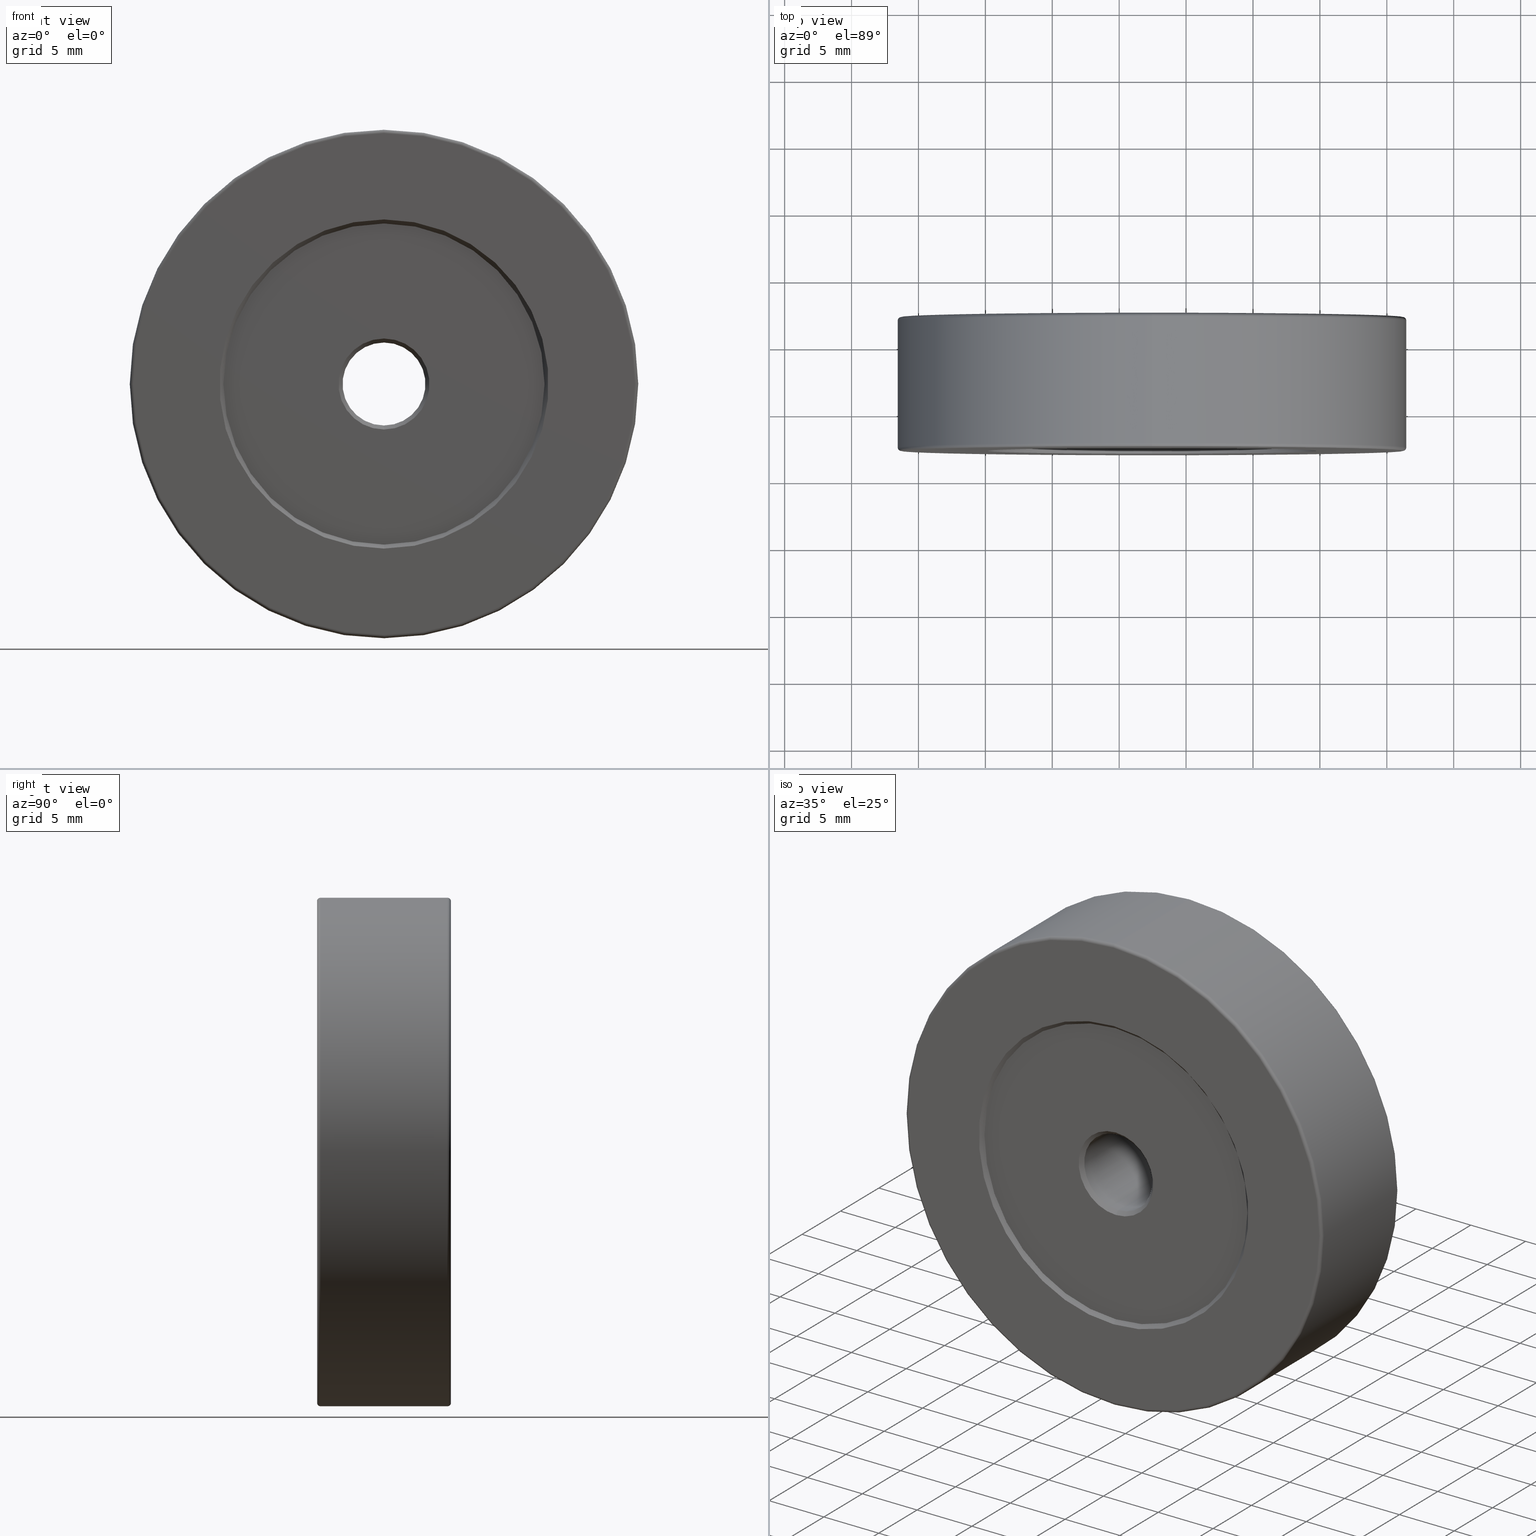
[diagram: canonical four-view strip — front | top / right | iso, engineering-drawing reading convention]
A machine part, canonical four-view strip (front | top / right | iso — engineering-drawing reading convention). The complete STEP part file that produces these views, byte-faithful:
ISO-10303-21;
HEADER;
FILE_DESCRIPTION (( 'STEP AP203' ),
    '1' );
FILE_NAME ('1.4.2.123_ZGH-38-DK10.STEP',
    '2024-04-06T05:22:21',
    ( '' ),
    ( '' ),
    'SwSTEP 2.0',
    'SolidWorks 2021',
    '' );
FILE_SCHEMA (( 'CONFIG_CONTROL_DESIGN' ));
ENDSEC;

DATA;
#1 = CALENDAR_DATE ( 2024, 6, 4 ) ;
#2 = ADVANCED_FACE ( 'NONE', ( #467 ), #8, .F. ) ;
#3 = CC_DESIGN_DATE_AND_TIME_ASSIGNMENT ( #567, #296, ( #200 ) ) ;
#4 = ORIENTED_EDGE ( 'NONE', *, *, #577, .T. ) ;
#5 = EDGE_CURVE ( 'NONE', #523, #37, #374, .T. ) ;
#6 = APPROVAL_STATUS ( 'not_yet_approved' ) ;
#7 = AXIS2_PLACEMENT_3D ( 'NONE', #418, #608, #546 ) ;
#8 = CONICAL_SURFACE ( 'NONE', #304, 3.099999999999998757, 0.7853981633974460586 ) ;
#9 = CARTESIAN_POINT ( 'NONE',  ( -7.546808913101048510, 1.856404872697271946, 56.99999999999999289 ) ) ;
#10 = ORIENTED_EDGE ( 'NONE', *, *, #140, .T. ) ;
#11 = CARTESIAN_POINT ( 'NONE',  ( -7.546808913101048510, -7.293595127302721082, 41.09999999999999432 ) ) ;
#12 = ORIENTED_EDGE ( 'NONE', *, *, #609, .T. ) ;
#13 = CARTESIAN_POINT ( 'NONE',  ( -7.546808913101048510, 1.506404872697263642, 38.00000000000000000 ) ) ;
#14 = ORIENTED_EDGE ( 'NONE', *, *, #106, .F. ) ;
#15 = DIRECTION ( 'NONE',  ( 0.000000000000000000, 0.000000000000000000, -1.000000000000000000 ) ) ;
#16 = CARTESIAN_POINT ( 'NONE',  ( -7.546808913101048510, -7.893595127302726944, 41.09999999999999432 ) ) ;
#17 = AXIS2_PLACEMENT_3D ( 'NONE', #524, #53, #351 ) ;
#18 = ORIENTED_EDGE ( 'NONE', *, *, #512, .T. ) ;
#19 = EDGE_CURVE ( 'NONE', #523, #270, #98, .T. ) ;
#20 = DIRECTION ( 'NONE',  ( 0.000000000000000000, 0.000000000000000000, 1.000000000000000000 ) ) ;
#21 = CARTESIAN_POINT ( 'NONE',  ( -7.546808913101048510, 1.806404872697273900, 38.00000000000000000 ) ) ;
#22 = EDGE_LOOP ( 'NONE', ( #563, #282, #573, #490 ) ) ;
#23 = DIRECTION ( 'NONE',  ( 8.659560562354914369E-17, 0.7071067811865490160, -0.7071067811865460184 ) ) ;
#24 = DIRECTION ( 'NONE',  ( 0.000000000000000000, 0.000000000000000000, 1.000000000000000000 ) ) ;
#25 = VERTEX_POINT ( 'NONE', #186 ) ;
#26 = CARTESIAN_POINT ( 'NONE',  ( -7.546808913101048510, -7.643595127302727832, 56.74999999999999289 ) ) ;
#27 = DIRECTION ( 'NONE',  ( 0.000000000000000000, 0.000000000000000000, -1.000000000000000000 ) ) ;
#28 = AXIS2_PLACEMENT_3D ( 'NONE', #459, #233, #221 ) ;
#29 = EDGE_CURVE ( 'NONE', #188, #97, #535, .T. ) ;
#30 = AXIS2_PLACEMENT_3D ( 'NONE', #576, #530, #442 ) ;
#31 = ORIENTED_EDGE ( 'NONE', *, *, #140, .F. ) ;
#32 = CARTESIAN_POINT ( 'NONE',  ( -7.546808913101048510, 2.106404872697272168, 38.00000000000000000 ) ) ;
#33 = DIRECTION ( 'NONE',  ( 0.000000000000000000, 0.000000000000000000, 1.000000000000000000 ) ) ;
#34 = EDGE_LOOP ( 'NONE', ( #306, #228, #359, #363 ) ) ;
#35 = CYLINDRICAL_SURFACE ( 'NONE', #28, 19.00000000000000000 ) ;
#36 = CARTESIAN_POINT ( 'NONE',  ( -7.546808913101048510, 2.106404872697272168, 38.00000000000000000 ) ) ;
#37 = VERTEX_POINT ( 'NONE', #417 ) ;
#38 = FACE_OUTER_BOUND ( 'NONE', #312, .T. ) ;
#39 = VERTEX_POINT ( 'NONE', #272 ) ;
#40 = AXIS2_PLACEMENT_3D ( 'NONE', #279, #380, #27 ) ;
#41 = DIRECTION ( 'NONE',  ( 0.000000000000000000, 0.000000000000000000, -1.000000000000000000 ) ) ;
#42 = EDGE_CURVE ( 'NONE', #585, #299, #458, .T. ) ;
#43 = APPROVAL ( #54, 'δָ��' ) ;
#44 = EDGE_LOOP ( 'NONE', ( #14, #132, #487, #143 ) ) ;
#45 = APPROVAL_STATUS ( 'not_yet_approved' ) ;
#46 = EDGE_CURVE ( 'NONE', #266, #286, #235, .T. ) ;
#47 =( GEOMETRIC_REPRESENTATION_CONTEXT ( 3 ) GLOBAL_UNCERTAINTY_ASSIGNED_CONTEXT ( ( #445 ) ) GLOBAL_UNIT_ASSIGNED_CONTEXT ( ( #559, #421, #138 ) ) REPRESENTATION_CONTEXT ( 'NONE', 'WORKASPACE' ) );
#48 = PERSON_AND_ORGANIZATION_ROLE ( 'design_owner' ) ;
#49 = LOCAL_TIME ( 13, 22, 21.00000000000000000, #196 ) ;
#50 = ORIENTED_EDGE ( 'NONE', *, *, #477, .T. ) ;
#51 = VECTOR ( 'NONE', #298, 1000.000000000000000 ) ;
#52 = AXIS2_PLACEMENT_3D ( 'NONE', #210, #369, #108 ) ;
#53 = DIRECTION ( 'NONE',  ( -0.000000000000000000, 1.000000000000000000, -0.000000000000000000 ) ) ;
#54 = APPROVAL_STATUS ( 'not_yet_approved' ) ;
#55 = DIRECTION ( 'NONE',  ( -0.000000000000000000, -1.000000000000000000, -0.000000000000000000 ) ) ;
#56 = EDGE_CURVE ( 'NONE', #270, #97, #583, .T. ) ;
#57 = CONICAL_SURFACE ( 'NONE', #190, 3.099999999999998757, 0.7853981633974460586 ) ;
#58 = LINE ( 'NONE', #444, #403 ) ;
#59 = SECURITY_CLASSIFICATION ( '', '', #248 ) ;
#60 = AXIS2_PLACEMENT_3D ( 'NONE', #552, #462, #182 ) ;
#61 = CARTESIAN_POINT ( 'NONE',  ( -7.546808913101048510, -7.643595127302727832, 38.00000000000000000 ) ) ;
#62 = ADVANCED_FACE ( 'NONE', ( #240 ), #486, .F. ) ;
#63 = VERTEX_POINT ( 'NONE', #571 ) ;
#64 = CARTESIAN_POINT ( 'NONE',  ( -7.546808913101048510, 1.806404872697272346, 38.00000000000000000 ) ) ;
#65 = DIRECTION ( 'NONE',  ( 0.000000000000000000, 1.000000000000000000, 0.000000000000000000 ) ) ;
#66 = ORIENTED_EDGE ( 'NONE', *, *, #68, .F. ) ;
#67 = CARTESIAN_POINT ( 'NONE',  ( -7.546808913101048510, 1.806404872697272346, 50.00000000000000000 ) ) ;
#68 = EDGE_CURVE ( 'NONE', #526, #204, #223, .T. ) ;
#69 = FACE_OUTER_BOUND ( 'NONE', #44, .T. ) ;
#70 = ORIENTED_EDGE ( 'NONE', *, *, #316, .F. ) ;
#71 = DIRECTION ( 'NONE',  ( 0.000000000000000000, 0.000000000000000000, 1.000000000000000000 ) ) ;
#72 = AXIS2_PLACEMENT_3D ( 'NONE', #307, #561, #606 ) ;
#73 = ADVANCED_FACE ( 'NONE', ( #207, #74 ), #485, .T. ) ;
#74 = FACE_OUTER_BOUND ( 'NONE', #367, .T. ) ;
#75 = ORIENTED_EDGE ( 'NONE', *, *, #422, .T. ) ;
#76 = CARTESIAN_POINT ( 'NONE',  ( -7.546808913101048510, -7.893595127302726944, 38.00000000000000000 ) ) ;
#77 = CARTESIAN_POINT ( 'NONE',  ( -7.546808913101048510, 1.806404872697273900, 50.00000000000000000 ) ) ;
#78 = ORIENTED_EDGE ( 'NONE', *, *, #153, .T. ) ;
#79 = DIRECTION ( 'NONE',  ( 0.000000000000000000, 0.000000000000000000, 1.000000000000000000 ) ) ;
#80 = ADVANCED_FACE ( 'NONE', ( #157 ), #348, .T. ) ;
#81 = CARTESIAN_POINT ( 'NONE',  ( -7.546808913101045846, 2.106404872697272168, 19.25000000000000000 ) ) ;
#82 = ORIENTED_EDGE ( 'NONE', *, *, #19, .F. ) ;
#83 = DIRECTION ( 'NONE',  ( -0.000000000000000000, -1.000000000000000000, -0.000000000000000000 ) ) ;
#84 = DIRECTION ( 'NONE',  ( 0.000000000000000000, 0.7071067811865474617, 0.7071067811865474617 ) ) ;
#85 = CIRCLE ( 'NONE', #72, 12.00000000000000355 ) ;
#86 = CC_DESIGN_SECURITY_CLASSIFICATION ( #59, ( #392 ) ) ;
#87 = AXIS2_PLACEMENT_3D ( 'NONE', #329, #171, #551 ) ;
#88 = AXIS2_PLACEMENT_3D ( 'NONE', #542, #404, #20 ) ;
#89 = CARTESIAN_POINT ( 'NONE',  ( -7.546808913101048510, 2.106404872697272168, 19.00000000000000000 ) ) ;
#90 = DIRECTION ( 'NONE',  ( -1.000000000000000000, 0.000000000000000000, 0.000000000000000000 ) ) ;
#91 = DIRECTION ( 'NONE',  ( -0.000000000000000000, -1.000000000000000000, -0.000000000000000000 ) ) ;
#92 = ORIENTED_EDGE ( 'NONE', *, *, #412, .T. ) ;
#93 = EDGE_LOOP ( 'NONE', ( #220, #18 ) ) ;
#94 = EDGE_CURVE ( 'NONE', #39, #569, #146, .T. ) ;
#95 = CARTESIAN_POINT ( 'NONE',  ( 0.000000000000000000, 0.000000000000000000, 0.000000000000000000 ) ) ;
#96 = CC_DESIGN_PERSON_AND_ORGANIZATION_ASSIGNMENT ( #344, #433, ( #392 ) ) ;
#97 = VERTEX_POINT ( 'NONE', #167 ) ;
#98 = CIRCLE ( 'NONE', #495, 0.2500000000000002220 ) ;
#99 = PERSON_AND_ORGANIZATION ( #521, #603 ) ;
#100 = APPROVAL_DATE_TIME ( #478, #43 ) ;
#101 = APPROVAL_ROLE ( '' ) ;
#102 = ORIENTED_EDGE ( 'NONE', *, *, #94, .T. ) ;
#103 = CIRCLE ( 'NONE', #199, 3.099999999999998757 ) ;
#104 = PERSON_AND_ORGANIZATION ( #521, #603 ) ;
#105 = VECTOR ( 'NONE', #249, 1000.000000000000000 ) ;
#106 = EDGE_CURVE ( 'NONE', #155, #63, #428, .T. ) ;
#107 = ORIENTED_EDGE ( 'NONE', *, *, #465, .F. ) ;
#108 = DIRECTION ( 'NONE',  ( 0.000000000000000000, 0.000000000000000000, 1.000000000000000000 ) ) ;
#109 = CC_DESIGN_DATE_AND_TIME_ASSIGNMENT ( #435, #516, ( #59 ) ) ;
#110 = EDGE_LOOP ( 'NONE', ( #290, #12 ) ) ;
#111 = CIRCLE ( 'NONE', #474, 3.400000000000007017 ) ;
#112 = APPROVAL_PERSON_ORGANIZATION ( #99, #43, #101 ) ;
#113 = FACE_OUTER_BOUND ( 'NONE', #406, .T. ) ;
#114 = TOROIDAL_SURFACE ( 'NONE', #386, 18.75000000000000000, 0.2500000000000000000 ) ;
#115 = ORIENTED_EDGE ( 'NONE', *, *, #337, .T. ) ;
#116 = CARTESIAN_POINT ( 'NONE',  ( -7.546808913101048510, -7.593595127302728010, 38.00000000000000000 ) ) ;
#117 = EDGE_CURVE ( 'NONE', #507, #308, #582, .T. ) ;
#118 = ORIENTED_EDGE ( 'NONE', *, *, #436, .T. ) ;
#119 = EDGE_CURVE ( 'NONE', #204, #286, #203, .T. ) ;
#120 = DIRECTION ( 'NONE',  ( 0.000000000000000000, 0.000000000000000000, 1.000000000000000000 ) ) ;
#121 = CARTESIAN_POINT ( 'NONE',  ( -7.546808913101046734, -7.593595127302728010, 50.00000000000000000 ) ) ;
#122 = ORIENTED_EDGE ( 'NONE', *, *, #245, .T. ) ;
#123 = CARTESIAN_POINT ( 'NONE',  ( -7.546808913101048510, -7.593595127302728010, 41.40000000000000568 ) ) ;
#124 = DIRECTION ( 'NONE',  ( -0.000000000000000000, 1.000000000000000000, -0.000000000000000000 ) ) ;
#125 = AXIS2_PLACEMENT_3D ( 'NONE', #269, #91, #411 ) ;
#126 = ORIENTED_EDGE ( 'NONE', *, *, #267, .F. ) ;
#127 = CARTESIAN_POINT ( 'NONE',  ( -7.546808913101048510, -7.293595127302721082, 34.89999999999999858 ) ) ;
#128 = DIRECTION ( 'NONE',  ( 0.000000000000000000, 0.000000000000000000, 1.000000000000000000 ) ) ;
#129 = ORIENTED_EDGE ( 'NONE', *, *, #389, .F. ) ;
#130 = FACE_OUTER_BOUND ( 'NONE', #137, .T. ) ;
#131 = DIRECTION ( 'NONE',  ( -0.000000000000000000, -1.000000000000000000, -0.000000000000000000 ) ) ;
#132 = ORIENTED_EDGE ( 'NONE', *, *, #316, .T. ) ;
#133 = CARTESIAN_POINT ( 'NONE',  ( -7.546808913101048510, 2.106404872697272168, 50.29999999999999716 ) ) ;
#134 = FACE_OUTER_BOUND ( 'NONE', #215, .T. ) ;
#135 = CIRCLE ( 'NONE', #313, 18.99999999999999645 ) ;
#136 = AXIS2_PLACEMENT_3D ( 'NONE', #399, #447, #212 ) ;
#137 = EDGE_LOOP ( 'NONE', ( #538, #482 ) ) ;
#138 =( NAMED_UNIT ( * ) SI_UNIT ( $, .STERADIAN. ) SOLID_ANGLE_UNIT ( ) );
#139 = APPLICATION_CONTEXT ( 'configuration controlled 3d designs of mechanical parts and assemblies' ) ;
#140 = EDGE_CURVE ( 'NONE', #188, #523, #401, .T. ) ;
#141 = ORIENTED_EDGE ( 'NONE', *, *, #477, .F. ) ;
#142 = DIRECTION ( 'NONE',  ( 0.000000000000000000, 0.000000000000000000, 1.000000000000000000 ) ) ;
#143 = ORIENTED_EDGE ( 'NONE', *, *, #544, .F. ) ;
#144 = COORDINATED_UNIVERSAL_TIME_OFFSET ( 8, 0, .AHEAD. ) ;
#145 = CIRCLE ( 'NONE', #209, 0.2500000000000002220 ) ;
#146 = CIRCLE ( 'NONE', #136, 12.29999999999999893 ) ;
#147 = EDGE_LOOP ( 'NONE', ( #129, #168, #278, #320 ) ) ;
#148 = CARTESIAN_POINT ( 'NONE',  ( -7.546808913101048510, -7.893595127302726944, 38.00000000000000000 ) ) ;
#149 = APPROVAL_ROLE ( '' ) ;
#150 = CIRCLE ( 'NONE', #234, 18.74999999999999645 ) ;
#151 = ORIENTED_EDGE ( 'NONE', *, *, #422, .F. ) ;
#152 = VECTOR ( 'NONE', #238, 1000.000000000000000 ) ;
#153 = EDGE_CURVE ( 'NONE', #402, #585, #480, .T. ) ;
#154 = DIRECTION ( 'NONE',  ( 0.000000000000000000, 1.000000000000000000, 0.000000000000000000 ) ) ;
#155 = VERTEX_POINT ( 'NONE', #408 ) ;
#156 = DIRECTION ( 'NONE',  ( 0.000000000000000000, 0.000000000000000000, 1.000000000000000000 ) ) ;
#157 = FACE_OUTER_BOUND ( 'NONE', #388, .T. ) ;
#158 = ORIENTED_EDGE ( 'NONE', *, *, #337, .F. ) ;
#159 = CIRCLE ( 'NONE', #457, 12.29999999999999183 ) ;
#160 = FACE_OUTER_BOUND ( 'NONE', #34, .T. ) ;
#161 = VECTOR ( 'NONE', #597, 1000.000000000000114 ) ;
#162 = CIRCLE ( 'NONE', #356, 12.00000000000000355 ) ;
#163 = CARTESIAN_POINT ( 'NONE',  ( -7.546808913101048510, -7.593595127302728010, 34.59999999999999432 ) ) ;
#164 = CC_DESIGN_PERSON_AND_ORGANIZATION_ASSIGNMENT ( #104, #48, ( #331 ) ) ;
#165 = ORIENTED_EDGE ( 'NONE', *, *, #229, .F. ) ;
#166 = CARTESIAN_POINT ( 'NONE',  ( -7.546808913101048510, 1.806404872697272346, 34.59999999999999432 ) ) ;
#167 = CARTESIAN_POINT ( 'NONE',  ( -7.546808913101048510, 2.106404872697272168, 56.74999999999999289 ) ) ;
#168 = ORIENTED_EDGE ( 'NONE', *, *, #500, .F. ) ;
#169 = ADVANCED_FACE ( 'NONE', ( #265 ), #470, .F. ) ;
#170 = CARTESIAN_POINT ( 'NONE',  ( -7.546808913101048510, -7.643595127302727832, 38.00000000000000000 ) ) ;
#171 = DIRECTION ( 'NONE',  ( -0.000000000000000000, -1.000000000000000000, -0.000000000000000000 ) ) ;
#172 = ORIENTED_EDGE ( 'NONE', *, *, #227, .T. ) ;
#173 = CARTESIAN_POINT ( 'NONE',  ( -7.546808913101048510, 1.506404872697263642, 34.89999999999999858 ) ) ;
#174 = CIRCLE ( 'NONE', #484, 3.400000000000007017 ) ;
#175 = CARTESIAN_POINT ( 'NONE',  ( -7.546808913101048510, -7.593595127302728010, 34.59999999999999432 ) ) ;
#176 = CONICAL_SURFACE ( 'NONE', #520, 12.00000000000000355, 0.7853981633974482790 ) ;
#177 = DIRECTION ( 'NONE',  ( 1.000000000000000000, -0.000000000000000000, 1.224646799147353207E-16 ) ) ;
#178 = PLANE ( 'NONE',  #7 ) ;
#179 = DIRECTION ( 'NONE',  ( 0.000000000000000000, -0.7071067811865536790, -0.7071067811865414665 ) ) ;
#180 = ORIENTED_EDGE ( 'NONE', *, *, #488, .T. ) ;
#181 = PLANE ( 'NONE',  #612 ) ;
#182 = DIRECTION ( 'NONE',  ( 0.000000000000000000, 0.000000000000000000, 1.000000000000000000 ) ) ;
#183 = CYLINDRICAL_SURFACE ( 'NONE', #87, 19.00000000000000000 ) ;
#184 = AXIS2_PLACEMENT_3D ( 'NONE', #95, #283, #244 ) ;
#185 = APPROVAL ( #45, 'δָ��' ) ;
#186 = CARTESIAN_POINT ( 'NONE',  ( -7.546808913101046734, 1.806404872697272346, 25.99999999999999645 ) ) ;
#187 = APPLICATION_PROTOCOL_DEFINITION ( 'international standard', 'config_control_design', 1994, #206 ) ;
#188 = VERTEX_POINT ( 'NONE', #9 ) ;
#189 = ADVANCED_FACE ( 'NONE', ( #394 ), #176, .F. ) ;
#190 = AXIS2_PLACEMENT_3D ( 'NONE', #13, #491, #593 ) ;
#191 = AXIS2_PLACEMENT_3D ( 'NONE', #254, #587, #534 ) ;
#192 = CIRCLE ( 'NONE', #125, 3.400000000000007017 ) ;
#193 = CALENDAR_DATE ( 2024, 6, 4 ) ;
#194 = PERSON_AND_ORGANIZATION ( #521, #603 ) ;
#195 = DIRECTION ( 'NONE',  ( -0.000000000000000000, -1.000000000000000000, -0.000000000000000000 ) ) ;
#196 = COORDINATED_UNIVERSAL_TIME_OFFSET ( 8, 0, .AHEAD. ) ;
#197 = ORIENTED_EDGE ( 'NONE', *, *, #500, .T. ) ;
#198 = ADVANCED_FACE ( 'NONE', ( #69 ), #114, .T. ) ;
#199 = AXIS2_PLACEMENT_3D ( 'NONE', #532, #360, #263 ) ;
#200 = PRODUCT_DEFINITION ( 'δ֪', '', #392, #364 ) ;
#201 = AXIS2_PLACEMENT_3D ( 'NONE', #396, #55, #358 ) ;
#202 = CARTESIAN_POINT ( 'NONE',  ( -7.546808913101048510, -7.593595127302728010, 41.40000000000000568 ) ) ;
#203 = LINE ( 'NONE', #310, #51 ) ;
#204 = VERTEX_POINT ( 'NONE', #121 ) ;
#205 = LINE ( 'NONE', #493, #277 ) ;
#206 = APPLICATION_CONTEXT ( 'configuration controlled 3d designs of mechanical parts and assemblies' ) ;
#207 = FACE_BOUND ( 'NONE', #110, .T. ) ;
#208 = ORIENTED_EDGE ( 'NONE', *, *, #427, .T. ) ;
#209 = AXIS2_PLACEMENT_3D ( 'NONE', #26, #90, #550 ) ;
#210 = CARTESIAN_POINT ( 'NONE',  ( -7.546808913101048510, -7.593595127302728010, 38.00000000000000000 ) ) ;
#211 = VECTOR ( 'NONE', #179, 1000.000000000000000 ) ;
#212 = DIRECTION ( 'NONE',  ( 0.000000000000000000, 0.000000000000000000, 1.000000000000000000 ) ) ;
#213 = ORIENTED_EDGE ( 'NONE', *, *, #119, .F. ) ;
#214 = DIRECTION ( 'NONE',  ( 0.000000000000000000, 0.000000000000000000, 1.000000000000000000 ) ) ;
#215 = EDGE_LOOP ( 'NONE', ( #70, #424, #324, #151 ) ) ;
#216 = ADVANCED_FACE ( 'NONE', ( #419 ), #183, .T. ) ;
#217 = DIRECTION ( 'NONE',  ( -0.000000000000000000, -1.000000000000000000, -0.000000000000000000 ) ) ;
#218 = ADVANCED_FACE ( 'NONE', ( #505 ), #275, .F. ) ;
#219 = DIRECTION ( 'NONE',  ( 0.000000000000000000, -0.000000000000000000, 1.000000000000000000 ) ) ;
#220 = ORIENTED_EDGE ( 'NONE', *, *, #46, .T. ) ;
#221 = DIRECTION ( 'NONE',  ( 0.000000000000000000, 0.000000000000000000, -1.000000000000000000 ) ) ;
#222 = CARTESIAN_POINT ( 'NONE',  ( -7.546808913101048510, -7.593595127302728010, 38.00000000000000000 ) ) ;
#223 = CIRCLE ( 'NONE', #17, 12.00000000000000355 ) ;
#224 = CARTESIAN_POINT ( 'NONE',  ( -7.546808913101048510, 1.506404872697263642, 41.09999999999999432 ) ) ;
#225 = CARTESIAN_POINT ( 'NONE',  ( -7.546808913101048510, -7.293595127302721082, 38.00000000000000000 ) ) ;
#226 = CARTESIAN_POINT ( 'NONE',  ( -7.546808913101048510, -7.893595127302726944, 38.00000000000000000 ) ) ;
#227 = EDGE_CURVE ( 'NONE', #454, #585, #508, .T. ) ;
#228 = ORIENTED_EDGE ( 'NONE', *, *, #361, .T. ) ;
#229 = EDGE_CURVE ( 'NONE', #507, #454, #463, .T. ) ;
#230 = CARTESIAN_POINT ( 'NONE',  ( -7.546808913101048510, -7.643595127302727832, 38.00000000000000000 ) ) ;
#231 = EDGE_CURVE ( 'NONE', #443, #569, #502, .T. ) ;
#232 = DIRECTION ( 'NONE',  ( 0.000000000000000000, 0.000000000000000000, 1.000000000000000000 ) ) ;
#233 = DIRECTION ( 'NONE',  ( -0.000000000000000000, -1.000000000000000000, -0.000000000000000000 ) ) ;
#234 = AXIS2_PLACEMENT_3D ( 'NONE', #32, #375, #281 ) ;
#235 = CIRCLE ( 'NONE', #60, 12.29999999999999183 ) ;
#236 = EDGE_LOOP ( 'NONE', ( #66, #381 ) ) ;
#237 = DIRECTION ( 'NONE',  ( 0.000000000000000000, 0.000000000000000000, 1.000000000000000000 ) ) ;
#238 = DIRECTION ( 'NONE',  ( -0.000000000000000000, -1.000000000000000000, -0.000000000000000000 ) ) ;
#239 = APPROVAL_ROLE ( '' ) ;
#240 = FACE_OUTER_BOUND ( 'NONE', #429, .T. ) ;
#241 = CIRCLE ( 'NONE', #328, 12.29999999999999893 ) ;
#242 = TOROIDAL_SURFACE ( 'NONE', #88, 18.75000000000000000, 0.2500000000000000000 ) ;
#243 = DATE_AND_TIME ( #473, #346 ) ;
#244 = DIRECTION ( 'NONE',  ( 1.000000000000000000, 0.000000000000000000, 0.000000000000000000 ) ) ;
#245 = EDGE_CURVE ( 'NONE', #63, #155, #338, .T. ) ;
#246 = ORIENTED_EDGE ( 'NONE', *, *, #229, .T. ) ;
#247 = CC_DESIGN_PERSON_AND_ORGANIZATION_ASSIGNMENT ( #336, #288, ( #200 ) ) ;
#248 = SECURITY_CLASSIFICATION_LEVEL ( 'unclassified' ) ;
#249 = DIRECTION ( 'NONE',  ( -0.000000000000000000, 1.000000000000000000, -0.000000000000000000 ) ) ;
#250 = CIRCLE ( 'NONE', #437, 18.99999999999999645 ) ;
#251 = ORIENTED_EDGE ( 'NONE', *, *, #609, .F. ) ;
#252 = AXIS2_PLACEMENT_3D ( 'NONE', #461, #599, #33 ) ;
#253 = LINE ( 'NONE', #539, #432 ) ;
#254 = CARTESIAN_POINT ( 'NONE',  ( -7.546808913101048510, 1.806404872697272346, 38.00000000000000000 ) ) ;
#255 = ADVANCED_FACE ( 'NONE', ( #276, #323 ), #181, .F. ) ;
#256 = ORIENTED_EDGE ( 'NONE', *, *, #153, .F. ) ;
#257 = DIRECTION ( 'NONE',  ( 0.000000000000000000, 0.000000000000000000, 1.000000000000000000 ) ) ;
#258 = ORIENTED_EDGE ( 'NONE', *, *, #231, .T. ) ;
#259 = DIRECTION ( 'NONE',  ( 8.659560562354932858E-17, 0.7071067811865474617, -0.7071067811865474617 ) ) ;
#260 = CARTESIAN_POINT ( 'NONE',  ( -7.546808913101048510, 1.856404872697271946, 38.00000000000000000 ) ) ;
#261 = ORIENTED_EDGE ( 'NONE', *, *, #117, .F. ) ;
#262 = AXIS2_PLACEMENT_3D ( 'NONE', #64, #407, #257 ) ;
#263 = DIRECTION ( 'NONE',  ( 0.000000000000000000, 0.000000000000000000, -1.000000000000000000 ) ) ;
#264 = OPEN_SHELL ( 'NONE', ( #341, #198, #570, #322, #479, #452, #446, #218, #169, #528, #2, #73, #189, #518, #80, #216, #311, #255, #62, #350 ) ) ;
#265 = FACE_OUTER_BOUND ( 'NONE', #147, .T. ) ;
#266 = VERTEX_POINT ( 'NONE', #602 ) ;
#267 = EDGE_CURVE ( 'NONE', #526, #266, #376, .T. ) ;
#268 = DIRECTION ( 'NONE',  ( 0.000000000000000000, 0.000000000000000000, 1.000000000000000000 ) ) ;
#269 = CARTESIAN_POINT ( 'NONE',  ( -7.546808913101048510, 1.806404872697272346, 38.00000000000000000 ) ) ;
#270 = VERTEX_POINT ( 'NONE', #81 ) ;
#271 = CARTESIAN_POINT ( 'NONE',  ( -7.546808913101048510, -7.593595127302728010, 25.99999999999999645 ) ) ;
#272 = CARTESIAN_POINT ( 'NONE',  ( -7.546808913101046734, 2.106404872697272168, 25.69999999999999574 ) ) ;
#273 = DIRECTION ( 'NONE',  ( -0.000000000000000000, 1.000000000000000000, -0.000000000000000000 ) ) ;
#274 = APPROVAL_PERSON_ORGANIZATION ( #522, #295, #239 ) ;
#275 = CONICAL_SURFACE ( 'NONE', #575, 3.400000000000007017, 0.7853981633974490562 ) ;
#276 = FACE_OUTER_BOUND ( 'NONE', #592, .T. ) ;
#277 = VECTOR ( 'NONE', #305, 1000.000000000000000 ) ;
#278 = ORIENTED_EDGE ( 'NONE', *, *, #117, .T. ) ;
#279 = CARTESIAN_POINT ( 'NONE',  ( -7.546808913101045846, -7.643595127302727832, 19.25000000000000000 ) ) ;
#280 = ORIENTED_EDGE ( 'NONE', *, *, #465, .T. ) ;
#281 = DIRECTION ( 'NONE',  ( 0.000000000000000000, 0.000000000000000000, 1.000000000000000000 ) ) ;
#282 = ORIENTED_EDGE ( 'NONE', *, *, #19, .T. ) ;
#283 = DIRECTION ( 'NONE',  ( 0.000000000000000000, 0.000000000000000000, 1.000000000000000000 ) ) ;
#284 = AXIS2_PLACEMENT_3D ( 'NONE', #398, #581, #537 ) ;
#285 = AXIS2_PLACEMENT_3D ( 'NONE', #377, #481, #566 ) ;
#286 = VERTEX_POINT ( 'NONE', #498 ) ;
#287 = MECHANICAL_CONTEXT ( 'NONE', #206, 'mechanical' ) ;
#288 = PERSON_AND_ORGANIZATION_ROLE ( 'creator' ) ;
#289 = COORDINATED_UNIVERSAL_TIME_OFFSET ( 8, 0, .AHEAD. ) ;
#290 = ORIENTED_EDGE ( 'NONE', *, *, #291, .T. ) ;
#291 = EDGE_CURVE ( 'NONE', #299, #440, #192, .T. ) ;
#292 = AXIS2_PLACEMENT_3D ( 'NONE', #76, #309, #214 ) ;
#293 = APPLICATION_PROTOCOL_DEFINITION ( 'international standard', 'config_control_design', 1994, #139 ) ;
#294 = ORIENTED_EDGE ( 'NONE', *, *, #56, .F. ) ;
#295 = APPROVAL ( #6, 'δָ��' ) ;
#296 = DATE_TIME_ROLE ( 'creation_date' ) ;
#297 = EDGE_LOOP ( 'NONE', ( #536, #10, #492, #75 ) ) ;
#298 = DIRECTION ( 'NONE',  ( 8.659560562354858902E-17, -0.7071067811865536790, 0.7071067811865414665 ) ) ;
#299 = VERTEX_POINT ( 'NONE', #548 ) ;
#300 = FACE_BOUND ( 'NONE', #496, .T. ) ;
#301 = EDGE_CURVE ( 'NONE', #569, #39, #241, .T. ) ;
#302 = DIRECTION ( 'NONE',  ( 0.000000000000000000, 1.000000000000000000, 0.000000000000000000 ) ) ;
#303 = VERTEX_POINT ( 'NONE', #423 ) ;
#304 = AXIS2_PLACEMENT_3D ( 'NONE', #334, #600, #232 ) ;
#305 = DIRECTION ( 'NONE',  ( -0.000000000000000000, -1.000000000000000000, -0.000000000000000000 ) ) ;
#306 = ORIENTED_EDGE ( 'NONE', *, *, #227, .F. ) ;
#307 = CARTESIAN_POINT ( 'NONE',  ( -7.546808913101048510, -7.593595127302728010, 38.00000000000000000 ) ) ;
#308 = VERTEX_POINT ( 'NONE', #175 ) ;
#309 = DIRECTION ( 'NONE',  ( -0.000000000000000000, 1.000000000000000000, -0.000000000000000000 ) ) ;
#310 = CARTESIAN_POINT ( 'NONE',  ( -7.546808913101046734, -7.893595127302726944, 50.29999999999999005 ) ) ;
#311 = ADVANCED_FACE ( 'NONE', ( #134 ), #393, .T. ) ;
#312 = EDGE_LOOP ( 'NONE', ( #165, #197, #78, #50 ) ) ;
#313 = AXIS2_PLACEMENT_3D ( 'NONE', #410, #586, #120 ) ;
#314 = DIRECTION ( 'NONE',  ( 0.000000000000000000, 0.000000000000000000, -1.000000000000000000 ) ) ;
#315 = CIRCLE ( 'NONE', #40, 0.2500000000000002220 ) ;
#316 = EDGE_CURVE ( 'NONE', #155, #37, #315, .T. ) ;
#317 = CARTESIAN_POINT ( 'NONE',  ( -7.546808913101048510, -7.893595127302726944, 34.89999999999999858 ) ) ;
#318 = ORIENTED_EDGE ( 'NONE', *, *, #94, .F. ) ;
#319 = CARTESIAN_POINT ( 'NONE',  ( -7.546808913101048510, -7.893595127302726944, 38.00000000000000000 ) ) ;
#320 = ORIENTED_EDGE ( 'NONE', *, *, #590, .F. ) ;
#321 = FACE_OUTER_BOUND ( 'NONE', #352, .T. ) ;
#322 = ADVANCED_FACE ( 'NONE', ( #416 ), #242, .T. ) ;
#323 = FACE_BOUND ( 'NONE', #93, .T. ) ;
#324 = ORIENTED_EDGE ( 'NONE', *, *, #544, .T. ) ;
#325 = DIRECTION ( 'NONE',  ( 0.000000000000000000, 0.000000000000000000, -1.000000000000000000 ) ) ;
#326 = AXIS2_PLACEMENT_3D ( 'NONE', #425, #553, #237 ) ;
#327 = LOCAL_TIME ( 13, 22, 21.00000000000000000, #289 ) ;
#328 = AXIS2_PLACEMENT_3D ( 'NONE', #36, #554, #594 ) ;
#329 = CARTESIAN_POINT ( 'NONE',  ( -7.546808913101048510, 2.106404872697272168, 38.00000000000000000 ) ) ;
#330 = AXIS2_PLACEMENT_3D ( 'NONE', #395, #217, #15 ) ;
#331 = PRODUCT ( '1.4.2.123_ZGH-38-DK10', '1.4.2.123_ZGH-38-DK10', '', ( #287 ) ) ;
#332 = ORIENTED_EDGE ( 'NONE', *, *, #361, .F. ) ;
#333 = CARTESIAN_POINT ( 'NONE',  ( -7.546808913101048510, 1.856404872697271946, 56.74999999999999289 ) ) ;
#334 = CARTESIAN_POINT ( 'NONE',  ( -7.546808913101048510, 1.506404872697263642, 38.00000000000000000 ) ) ;
#335 = EDGE_CURVE ( 'NONE', #443, #25, #162, .T. ) ;
#336 = PERSON_AND_ORGANIZATION ( #521, #603 ) ;
#337 = EDGE_CURVE ( 'NONE', #25, #39, #253, .T. ) ;
#338 = CIRCLE ( 'NONE', #460, 18.74999999999999645 ) ;
#339 = PERSON_AND_ORGANIZATION ( #521, #603 ) ;
#340 = ORIENTED_EDGE ( 'NONE', *, *, #412, .F. ) ;
#341 = ADVANCED_FACE ( 'NONE', ( #365 ), #584, .F. ) ;
#342 = DIRECTION ( 'NONE',  ( 0.000000000000000000, 0.000000000000000000, -1.000000000000000000 ) ) ;
#343 = CC_DESIGN_PERSON_AND_ORGANIZATION_ASSIGNMENT ( #339, #472, ( #392 ) ) ;
#344 = PERSON_AND_ORGANIZATION ( #521, #603 ) ;
#345 = EDGE_LOOP ( 'NONE', ( #560, #102 ) ) ;
#346 = LOCAL_TIME ( 13, 22, 21.00000000000000000, #144 ) ;
#347 = SHELL_BASED_SURFACE_MODEL ( 'NONE', ( #264 ) );
#348 = TOROIDAL_SURFACE ( 'NONE', #448, 18.75000000000000000, 0.2500000000000000000 ) ;
#349 = ORIENTED_EDGE ( 'NONE', *, *, #119, .T. ) ;
#350 = ADVANCED_FACE ( 'NONE', ( #300, #489 ), #483, .T. ) ;
#351 = DIRECTION ( 'NONE',  ( 0.000000000000000000, 0.000000000000000000, 1.000000000000000000 ) ) ;
#352 = EDGE_LOOP ( 'NONE', ( #208, #588, #4, #449 ) ) ;
#353 = LINE ( 'NONE', #123, #613 ) ;
#354 = VECTOR ( 'NONE', #362, 1000.000000000000000 ) ;
#355 = ORIENTED_EDGE ( 'NONE', *, *, #46, .F. ) ;
#356 = AXIS2_PLACEMENT_3D ( 'NONE', #373, #578, #71 ) ;
#357 = DIRECTION ( 'NONE',  ( 8.659560562354939021E-17, -0.7071067811865470176, 0.7071067811865480168 ) ) ;
#358 = DIRECTION ( 'NONE',  ( 0.000000000000000000, 0.000000000000000000, 1.000000000000000000 ) ) ;
#359 = ORIENTED_EDGE ( 'NONE', *, *, #291, .F. ) ;
#360 = DIRECTION ( 'NONE',  ( -0.000000000000000000, -1.000000000000000000, -0.000000000000000000 ) ) ;
#361 = EDGE_CURVE ( 'NONE', #454, #440, #58, .T. ) ;
#362 = DIRECTION ( 'NONE',  ( 0.000000000000000000, -0.7071067811865470176, -0.7071067811865480168 ) ) ;
#363 = ORIENTED_EDGE ( 'NONE', *, *, #42, .F. ) ;
#364 = DESIGN_CONTEXT ( 'detailed design', #139, 'design' ) ;
#365 = FACE_OUTER_BOUND ( 'NONE', #580, .T. ) ;
#366 = DIRECTION ( 'NONE',  ( 0.000000000000000000, 1.000000000000000000, 0.000000000000000000 ) ) ;
#367 = EDGE_LOOP ( 'NONE', ( #529, #280 ) ) ;
#368 = CIRCLE ( 'NONE', #326, 18.99999999999999645 ) ;
#369 = DIRECTION ( 'NONE',  ( 0.000000000000000000, -1.000000000000000000, 0.000000000000000000 ) ) ;
#370 = DIRECTION ( 'NONE',  ( 0.000000000000000000, 1.000000000000000000, 0.000000000000000000 ) ) ;
#371 = DIRECTION ( 'NONE',  ( -1.000000000000000000, 0.000000000000000000, 0.000000000000000000 ) ) ;
#372 = DIRECTION ( 'NONE',  ( 0.000000000000000000, 0.000000000000000000, 1.000000000000000000 ) ) ;
#373 = CARTESIAN_POINT ( 'NONE',  ( -7.546808913101048510, 1.806404872697272346, 38.00000000000000000 ) ) ;
#374 = LINE ( 'NONE', #89, #152 ) ;
#375 = DIRECTION ( 'NONE',  ( 0.000000000000000000, 1.000000000000000000, 0.000000000000000000 ) ) ;
#376 = LINE ( 'NONE', #543, #211 ) ;
#377 = CARTESIAN_POINT ( 'NONE',  ( -7.546808913101048510, 2.106404872697272168, 38.00000000000000000 ) ) ;
#378 = DIRECTION ( 'NONE',  ( -0.000000000000000000, -1.000000000000000000, -0.000000000000000000 ) ) ;
#379 = AXIS2_PLACEMENT_3D ( 'NONE', #333, #371, #503 ) ;
#380 = DIRECTION ( 'NONE',  ( 1.000000000000000000, -0.000000000000000000, 1.224646799147353207E-16 ) ) ;
#381 = ORIENTED_EDGE ( 'NONE', *, *, #488, .F. ) ;
#382 = EDGE_CURVE ( 'NONE', #188, #303, #205, .T. ) ;
#383 = EDGE_LOOP ( 'NONE', ( #107, #115, #607, #471 ) ) ;
#384 = AXIS2_PLACEMENT_3D ( 'NONE', #415, #378, #142 ) ;
#385 = CIRCLE ( 'NONE', #431, 3.099999999999998757 ) ;
#386 = AXIS2_PLACEMENT_3D ( 'NONE', #61, #302, #24 ) ;
#387 = CALENDAR_DATE ( 2024, 6, 4 ) ;
#388 = EDGE_LOOP ( 'NONE', ( #82, #31, #409, #294 ) ) ;
#389 = EDGE_CURVE ( 'NONE', #402, #397, #353, .T. ) ;
#390 = CALENDAR_DATE ( 2024, 6, 4 ) ;
#391 = COORDINATED_UNIVERSAL_TIME_OFFSET ( 8, 0, .AHEAD. ) ;
#392 = PRODUCT_DEFINITION_FORMATION_WITH_SPECIFIED_SOURCE ( '�κ�', '', #331, .NOT_KNOWN. ) ;
#393 = TOROIDAL_SURFACE ( 'NONE', #605, 18.75000000000000000, 0.2500000000000000000 ) ;
#394 = FACE_OUTER_BOUND ( 'NONE', #556, .T. ) ;
#395 = CARTESIAN_POINT ( 'NONE',  ( -7.546808913101048510, -7.893595127302726944, 38.00000000000000000 ) ) ;
#396 = CARTESIAN_POINT ( 'NONE',  ( -7.546808913101048510, 1.856404872697271946, 38.00000000000000000 ) ) ;
#397 = VERTEX_POINT ( 'NONE', #202 ) ;
#398 = CARTESIAN_POINT ( 'NONE',  ( -7.546808913101048510, 1.806404872697273900, 38.00000000000000000 ) ) ;
#399 = CARTESIAN_POINT ( 'NONE',  ( -7.546808913101048510, 2.106404872697272168, 38.00000000000000000 ) ) ;
#400 = CC_DESIGN_APPROVAL ( #185, ( #59 ) ) ;
#401 = CIRCLE ( 'NONE', #201, 18.99999999999999645 ) ;
#402 = VERTEX_POINT ( 'NONE', #11 ) ;
#403 = VECTOR ( 'NONE', #23, 1000.000000000000114 ) ;
#404 = DIRECTION ( 'NONE',  ( 0.000000000000000000, 1.000000000000000000, 0.000000000000000000 ) ) ;
#405 = DIRECTION ( 'NONE',  ( -0.000000000000000000, -1.000000000000000000, -0.000000000000000000 ) ) ;
#406 = EDGE_LOOP ( 'NONE', ( #92, #246, #172, #256 ) ) ;
#407 = DIRECTION ( 'NONE',  ( 0.000000000000000000, 1.000000000000000000, 0.000000000000000000 ) ) ;
#408 = CARTESIAN_POINT ( 'NONE',  ( -7.546808913101045846, -7.893595127302726944, 19.25000000000000000 ) ) ;
#409 = ORIENTED_EDGE ( 'NONE', *, *, #29, .T. ) ;
#410 = CARTESIAN_POINT ( 'NONE',  ( -7.546808913101048510, 1.856404872697271946, 38.00000000000000000 ) ) ;
#411 = DIRECTION ( 'NONE',  ( 0.000000000000000000, 0.000000000000000000, 1.000000000000000000 ) ) ;
#412 = EDGE_CURVE ( 'NONE', #402, #507, #103, .T. ) ;
#413 = ORIENTED_EDGE ( 'NONE', *, *, #267, .T. ) ;
#414 = AXIS2_PLACEMENT_3D ( 'NONE', #589, #441, #268 ) ;
#415 = CARTESIAN_POINT ( 'NONE',  ( -7.546808913101048510, 1.806404872697272346, 38.00000000000000000 ) ) ;
#416 = FACE_OUTER_BOUND ( 'NONE', #22, .T. ) ;
#417 = CARTESIAN_POINT ( 'NONE',  ( -7.546808913101048510, -7.643595127302727832, 19.00000000000000000 ) ) ;
#418 = CARTESIAN_POINT ( 'NONE',  ( -7.546808913101048510, 2.106404872697272168, 38.00000000000000000 ) ) ;
#419 = FACE_OUTER_BOUND ( 'NONE', #297, .T. ) ;
#420 = ORIENTED_EDGE ( 'NONE', *, *, #68, .T. ) ;
#421 =( NAMED_UNIT ( * ) PLANE_ANGLE_UNIT ( ) SI_UNIT ( $, .RADIAN. ) );
#422 = EDGE_CURVE ( 'NONE', #37, #303, #250, .T. ) ;
#423 = CARTESIAN_POINT ( 'NONE',  ( -7.546808913101045846, -7.643595127302727832, 56.99999999999999289 ) ) ;
#424 = ORIENTED_EDGE ( 'NONE', *, *, #245, .F. ) ;
#425 = CARTESIAN_POINT ( 'NONE',  ( -7.546808913101048510, -7.643595127302727832, 38.00000000000000000 ) ) ;
#426 = CC_DESIGN_APPROVAL ( #295, ( #200 ) ) ;
#427 = EDGE_CURVE ( 'NONE', #523, #188, #135, .T. ) ;
#428 = CIRCLE ( 'NONE', #30, 18.74999999999999645 ) ;
#429 = EDGE_LOOP ( 'NONE', ( #213, #180, #413, #531 ) ) ;
#430 = COORDINATED_UNIVERSAL_TIME_OFFSET ( 8, 0, .AHEAD. ) ;
#431 = AXIS2_PLACEMENT_3D ( 'NONE', #225, #83, #41 ) ;
#432 = VECTOR ( 'NONE', #259, 1000.000000000000114 ) ;
#433 = PERSON_AND_ORGANIZATION_ROLE ( 'creator' ) ;
#434 = PERSON_AND_ORGANIZATION ( #521, #603 ) ;
#435 = DATE_AND_TIME ( #1, #574 ) ;
#436 = EDGE_CURVE ( 'NONE', #308, #397, #111, .T. ) ;
#437 = AXIS2_PLACEMENT_3D ( 'NONE', #170, #439, #156 ) ;
#438 = DIRECTION ( 'NONE',  ( 0.000000000000000000, 0.000000000000000000, -1.000000000000000000 ) ) ;
#439 = DIRECTION ( 'NONE',  ( 0.000000000000000000, 1.000000000000000000, 0.000000000000000000 ) ) ;
#440 = VERTEX_POINT ( 'NONE', #166 ) ;
#441 = DIRECTION ( 'NONE',  ( 0.000000000000000000, 1.000000000000000000, 0.000000000000000000 ) ) ;
#442 = DIRECTION ( 'NONE',  ( 0.000000000000000000, 0.000000000000000000, 1.000000000000000000 ) ) ;
#443 = VERTEX_POINT ( 'NONE', #67 ) ;
#444 = CARTESIAN_POINT ( 'NONE',  ( -7.546808913101048510, 1.506404872697263642, 34.89999999999999858 ) ) ;
#445 = UNCERTAINTY_MEASURE_WITH_UNIT (LENGTH_MEASURE( 1.000000000000000082E-05 ), #559, 'distance_accuracy_value', 'NONE');
#446 = ADVANCED_FACE ( 'NONE', ( #113 ), #450, .F. ) ;
#447 = DIRECTION ( 'NONE',  ( -0.000000000000000000, -1.000000000000000000, -0.000000000000000000 ) ) ;
#448 = AXIS2_PLACEMENT_3D ( 'NONE', #260, #65, #591 ) ;
#449 = ORIENTED_EDGE ( 'NONE', *, *, #5, .F. ) ;
#450 = CYLINDRICAL_SURFACE ( 'NONE', #292, 3.099999999999998757 ) ;
#451 = FACE_OUTER_BOUND ( 'NONE', #383, .T. ) ;
#452 = ADVANCED_FACE ( 'NONE', ( #160 ), #57, .F. ) ;
#453 = DIRECTION ( 'NONE',  ( 0.000000000000000000, 0.000000000000000000, -1.000000000000000000 ) ) ;
#454 = VERTEX_POINT ( 'NONE', #173 ) ;
#455 = CYLINDRICAL_SURFACE ( 'NONE', #506, 3.099999999999998757 ) ;
#456 = DIRECTION ( 'NONE',  ( 0.000000000000000000, 0.000000000000000000, 1.000000000000000000 ) ) ;
#457 = AXIS2_PLACEMENT_3D ( 'NONE', #509, #596, #372 ) ;
#458 = LINE ( 'NONE', #224, #161 ) ;
#459 = CARTESIAN_POINT ( 'NONE',  ( -7.546808913101048510, 2.106404872697272168, 38.00000000000000000 ) ) ;
#460 = AXIS2_PLACEMENT_3D ( 'NONE', #319, #131, #128 ) ;
#461 = CARTESIAN_POINT ( 'NONE',  ( -7.546808913101048510, 1.506404872697263642, 38.00000000000000000 ) ) ;
#462 = DIRECTION ( 'NONE',  ( 0.000000000000000000, 1.000000000000000000, 0.000000000000000000 ) ) ;
#463 = LINE ( 'NONE', #317, #527 ) ;
#464 = ORIENTED_EDGE ( 'NONE', *, *, #335, .F. ) ;
#465 = EDGE_CURVE ( 'NONE', #25, #443, #533, .T. ) ;
#466 = FACE_BOUND ( 'NONE', #345, .T. ) ;
#467 = FACE_OUTER_BOUND ( 'NONE', #499, .T. ) ;
#468 = DIRECTION ( 'NONE',  ( -0.000000000000000000, 1.000000000000000000, -0.000000000000000000 ) ) ;
#469 = CIRCLE ( 'NONE', #414, 3.099999999999998757 ) ;
#470 = CONICAL_SURFACE ( 'NONE', #565, 3.400000000000007017, 0.7853981633974490562 ) ;
#471 = ORIENTED_EDGE ( 'NONE', *, *, #231, .F. ) ;
#472 = PERSON_AND_ORGANIZATION_ROLE ( 'design_supplier' ) ;
#473 = CALENDAR_DATE ( 2024, 6, 4 ) ;
#474 = AXIS2_PLACEMENT_3D ( 'NONE', #116, #497, #314 ) ;
#475 = VECTOR ( 'NONE', #84, 1000.000000000000114 ) ;
#476 = APPROVAL_DATE_TIME ( #572, #185 ) ;
#477 = EDGE_CURVE ( 'NONE', #585, #454, #469, .T. ) ;
#478 = DATE_AND_TIME ( #387, #327 ) ;
#479 = ADVANCED_FACE ( 'NONE', ( #451 ), #611, .F. ) ;
#480 = LINE ( 'NONE', #16, #105 ) ;
#481 = DIRECTION ( 'NONE',  ( 0.000000000000000000, 1.000000000000000000, 0.000000000000000000 ) ) ;
#482 = ORIENTED_EDGE ( 'NONE', *, *, #56, .T. ) ;
#483 = PLANE ( 'NONE',  #52 ) ;
#484 = AXIS2_PLACEMENT_3D ( 'NONE', #598, #468, #325 ) ;
#485 = PLANE ( 'NONE',  #191 ) ;
#486 = CONICAL_SURFACE ( 'NONE', #558, 12.29999999999999183, 0.7853981633974396193 ) ;
#487 = ORIENTED_EDGE ( 'NONE', *, *, #577, .F. ) ;
#488 = EDGE_CURVE ( 'NONE', #204, #526, #85, .T. ) ;
#489 = FACE_OUTER_BOUND ( 'NONE', #236, .T. ) ;
#490 = ORIENTED_EDGE ( 'NONE', *, *, #29, .F. ) ;
#491 = DIRECTION ( 'NONE',  ( 0.000000000000000000, 1.000000000000000000, 0.000000000000000000 ) ) ;
#492 = ORIENTED_EDGE ( 'NONE', *, *, #5, .T. ) ;
#493 = CARTESIAN_POINT ( 'NONE',  ( -7.546808913101045846, 2.106404872697272168, 56.99999999999999289 ) ) ;
#494 = LOCAL_TIME ( 13, 22, 21.00000000000000000, #391 ) ;
#495 = AXIS2_PLACEMENT_3D ( 'NONE', #595, #177, #604 ) ;
#496 = EDGE_LOOP ( 'NONE', ( #118, #515 ) ) ;
#497 = DIRECTION ( 'NONE',  ( -0.000000000000000000, 1.000000000000000000, -0.000000000000000000 ) ) ;
#498 = CARTESIAN_POINT ( 'NONE',  ( -7.546808913101046734, -7.893595127302726944, 50.29999999999999005 ) ) ;
#499 = EDGE_LOOP ( 'NONE', ( #332, #141, #541, #251 ) ) ;
#500 = EDGE_CURVE ( 'NONE', #507, #402, #385, .T. ) ;
#501 = CARTESIAN_POINT ( 'NONE',  ( -7.546808913101044958, 1.856404872697271946, 19.00000000000000000 ) ) ;
#502 = LINE ( 'NONE', #77, #475 ) ;
#503 = DIRECTION ( 'NONE',  ( 0.000000000000000000, 0.000000000000000000, 1.000000000000000000 ) ) ;
#504 = CARTESIAN_POINT ( 'NONE',  ( -7.546808913101048510, 1.506404872697263642, 41.09999999999999432 ) ) ;
#505 = FACE_OUTER_BOUND ( 'NONE', #514, .T. ) ;
#506 = AXIS2_PLACEMENT_3D ( 'NONE', #601, #273, #79 ) ;
#507 = VERTEX_POINT ( 'NONE', #127 ) ;
#508 = CIRCLE ( 'NONE', #252, 3.099999999999998757 ) ;
#509 = CARTESIAN_POINT ( 'NONE',  ( -7.546808913101048510, -7.893595127302726944, 38.00000000000000000 ) ) ;
#510 = DIRECTION ( 'NONE',  ( -0.000000000000000000, -1.000000000000000000, -0.000000000000000000 ) ) ;
#511 = PRODUCT_DEFINITION_SHAPE ( 'NONE', 'NONE',  #200 ) ;
#512 = EDGE_CURVE ( 'NONE', #286, #266, #159, .T. ) ;
#513 = ORIENTED_EDGE ( 'NONE', *, *, #106, .T. ) ;
#514 = EDGE_LOOP ( 'NONE', ( #340, #549, #545, #261 ) ) ;
#515 = ORIENTED_EDGE ( 'NONE', *, *, #590, .T. ) ;
#516 = DATE_TIME_ROLE ( 'classification_date' ) ;
#517 = CIRCLE ( 'NONE', #384, 3.400000000000007017 ) ;
#518 = ADVANCED_FACE ( 'NONE', ( #130, #466 ), #178, .T. ) ;
#519 = CC_DESIGN_APPROVAL ( #43, ( #392 ) ) ;
#520 = AXIS2_PLACEMENT_3D ( 'NONE', #21, #154, #579 ) ;
#521 = PERSON ( 'δָ��', 'δָ��', 'δָ��', ('δָ��'), ('δָ��'), ('δָ��') ) ;
#522 = PERSON_AND_ORGANIZATION ( #521, #603 ) ;
#523 = VERTEX_POINT ( 'NONE', #501 ) ;
#524 = CARTESIAN_POINT ( 'NONE',  ( -7.546808913101048510, -7.593595127302728010, 38.00000000000000000 ) ) ;
#525 = SHAPE_DEFINITION_REPRESENTATION ( #511, #555 ) ;
#526 = VERTEX_POINT ( 'NONE', #271 ) ;
#527 = VECTOR ( 'NONE', #124, 1000.000000000000000 ) ;
#528 = ADVANCED_FACE ( 'NONE', ( #38 ), #455, .F. ) ;
#529 = ORIENTED_EDGE ( 'NONE', *, *, #335, .T. ) ;
#530 = DIRECTION ( 'NONE',  ( -0.000000000000000000, -1.000000000000000000, -0.000000000000000000 ) ) ;
#531 = ORIENTED_EDGE ( 'NONE', *, *, #512, .F. ) ;
#532 = CARTESIAN_POINT ( 'NONE',  ( -7.546808913101048510, -7.293595127302721082, 38.00000000000000000 ) ) ;
#533 = CIRCLE ( 'NONE', #262, 12.00000000000000355 ) ;
#534 = DIRECTION ( 'NONE',  ( 0.000000000000000000, -0.000000000000000000, 1.000000000000000000 ) ) ;
#535 = CIRCLE ( 'NONE', #379, 0.2500000000000002220 ) ;
#536 = ORIENTED_EDGE ( 'NONE', *, *, #382, .F. ) ;
#537 = DIRECTION ( 'NONE',  ( 0.000000000000000000, 0.000000000000000000, 1.000000000000000000 ) ) ;
#538 = ORIENTED_EDGE ( 'NONE', *, *, #562, .T. ) ;
#539 = CARTESIAN_POINT ( 'NONE',  ( -7.546808913101046734, 1.806404872697273900, 25.99999999999999645 ) ) ;
#540 = CARTESIAN_POINT ( 'NONE',  ( -7.546808913101048510, -7.593595127302728010, 38.00000000000000000 ) ) ;
#541 = ORIENTED_EDGE ( 'NONE', *, *, #42, .T. ) ;
#542 = CARTESIAN_POINT ( 'NONE',  ( -7.546808913101048510, 1.856404872697271946, 38.00000000000000000 ) ) ;
#543 = CARTESIAN_POINT ( 'NONE',  ( -7.546808913101048510, -7.893595127302726944, 25.70000000000000639 ) ) ;
#544 = EDGE_CURVE ( 'NONE', #63, #303, #145, .T. ) ;
#545 = ORIENTED_EDGE ( 'NONE', *, *, #436, .F. ) ;
#546 = DIRECTION ( 'NONE',  ( 0.000000000000000000, -0.000000000000000000, 1.000000000000000000 ) ) ;
#547 = CC_DESIGN_PERSON_AND_ORGANIZATION_ASSIGNMENT ( #434, #568, ( #59 ) ) ;
#548 = CARTESIAN_POINT ( 'NONE',  ( -7.546808913101048510, 1.806404872697272346, 41.40000000000000568 ) ) ;
#549 = ORIENTED_EDGE ( 'NONE', *, *, #389, .T. ) ;
#550 = DIRECTION ( 'NONE',  ( 0.000000000000000000, 0.000000000000000000, 1.000000000000000000 ) ) ;
#551 = DIRECTION ( 'NONE',  ( 0.000000000000000000, 0.000000000000000000, -1.000000000000000000 ) ) ;
#552 = CARTESIAN_POINT ( 'NONE',  ( -7.546808913101048510, -7.893595127302726944, 38.00000000000000000 ) ) ;
#553 = DIRECTION ( 'NONE',  ( 0.000000000000000000, 1.000000000000000000, 0.000000000000000000 ) ) ;
#554 = DIRECTION ( 'NONE',  ( -0.000000000000000000, -1.000000000000000000, -0.000000000000000000 ) ) ;
#555 = MANIFOLD_SURFACE_SHAPE_REPRESENTATION ( '1.4.2.123_ZGH-38-DK10', ( #347, #184 ), #47 ) ;
#556 = EDGE_LOOP ( 'NONE', ( #158, #464, #258, #318 ) ) ;
#557 = APPROVAL_PERSON_ORGANIZATION ( #194, #185, #149 ) ;
#558 = AXIS2_PLACEMENT_3D ( 'NONE', #148, #195, #342 ) ;
#559 =( LENGTH_UNIT ( ) NAMED_UNIT ( * ) SI_UNIT ( .MILLI., .METRE. ) );
#560 = ORIENTED_EDGE ( 'NONE', *, *, #301, .T. ) ;
#561 = DIRECTION ( 'NONE',  ( -0.000000000000000000, 1.000000000000000000, -0.000000000000000000 ) ) ;
#562 = EDGE_CURVE ( 'NONE', #97, #270, #150, .T. ) ;
#563 = ORIENTED_EDGE ( 'NONE', *, *, #427, .F. ) ;
#564 = APPROVAL_DATE_TIME ( #243, #295 ) ;
#565 = AXIS2_PLACEMENT_3D ( 'NONE', #540, #405, #438 ) ;
#566 = DIRECTION ( 'NONE',  ( 0.000000000000000000, 0.000000000000000000, 1.000000000000000000 ) ) ;
#567 = DATE_AND_TIME ( #193, #494 ) ;
#568 = PERSON_AND_ORGANIZATION_ROLE ( 'classification_officer' ) ;
#569 = VERTEX_POINT ( 'NONE', #133 ) ;
#570 = ADVANCED_FACE ( 'NONE', ( #321 ), #35, .T. ) ;
#571 = CARTESIAN_POINT ( 'NONE',  ( -7.546808913101048510, -7.893595127302726944, 56.74999999999999289 ) ) ;
#572 = DATE_AND_TIME ( #390, #49 ) ;
#573 = ORIENTED_EDGE ( 'NONE', *, *, #562, .F. ) ;
#574 = LOCAL_TIME ( 13, 22, 21.00000000000000000, #430 ) ;
#575 = AXIS2_PLACEMENT_3D ( 'NONE', #222, #510, #453 ) ;
#576 = CARTESIAN_POINT ( 'NONE',  ( -7.546808913101048510, -7.893595127302726944, 38.00000000000000000 ) ) ;
#577 = EDGE_CURVE ( 'NONE', #303, #37, #368, .T. ) ;
#578 = DIRECTION ( 'NONE',  ( 0.000000000000000000, 1.000000000000000000, 0.000000000000000000 ) ) ;
#579 = DIRECTION ( 'NONE',  ( 0.000000000000000000, 0.000000000000000000, 1.000000000000000000 ) ) ;
#580 = EDGE_LOOP ( 'NONE', ( #420, #349, #355, #126 ) ) ;
#581 = DIRECTION ( 'NONE',  ( 0.000000000000000000, 1.000000000000000000, 0.000000000000000000 ) ) ;
#582 = LINE ( 'NONE', #163, #354 ) ;
#583 = CIRCLE ( 'NONE', #285, 18.74999999999999645 ) ;
#584 = CONICAL_SURFACE ( 'NONE', #330, 12.29999999999999183, 0.7853981633974396193 ) ;
#585 = VERTEX_POINT ( 'NONE', #504 ) ;
#586 = DIRECTION ( 'NONE',  ( -0.000000000000000000, -1.000000000000000000, -0.000000000000000000 ) ) ;
#587 = DIRECTION ( 'NONE',  ( 0.000000000000000000, 1.000000000000000000, 0.000000000000000000 ) ) ;
#588 = ORIENTED_EDGE ( 'NONE', *, *, #382, .T. ) ;
#589 = CARTESIAN_POINT ( 'NONE',  ( -7.546808913101048510, 1.506404872697263642, 38.00000000000000000 ) ) ;
#590 = EDGE_CURVE ( 'NONE', #397, #308, #174, .T. ) ;
#591 = DIRECTION ( 'NONE',  ( 0.000000000000000000, 0.000000000000000000, 1.000000000000000000 ) ) ;
#592 = EDGE_LOOP ( 'NONE', ( #122, #513 ) ) ;
#593 = DIRECTION ( 'NONE',  ( 0.000000000000000000, 0.000000000000000000, 1.000000000000000000 ) ) ;
#594 = DIRECTION ( 'NONE',  ( 0.000000000000000000, 0.000000000000000000, 1.000000000000000000 ) ) ;
#595 = CARTESIAN_POINT ( 'NONE',  ( -7.546808913101045846, 1.856404872697271946, 19.25000000000000000 ) ) ;
#596 = DIRECTION ( 'NONE',  ( 0.000000000000000000, 1.000000000000000000, 0.000000000000000000 ) ) ;
#597 = DIRECTION ( 'NONE',  ( 0.000000000000000000, 0.7071067811865490160, 0.7071067811865460184 ) ) ;
#598 = CARTESIAN_POINT ( 'NONE',  ( -7.546808913101048510, -7.593595127302728010, 38.00000000000000000 ) ) ;
#599 = DIRECTION ( 'NONE',  ( 0.000000000000000000, 1.000000000000000000, 0.000000000000000000 ) ) ;
#600 = DIRECTION ( 'NONE',  ( 0.000000000000000000, 1.000000000000000000, 0.000000000000000000 ) ) ;
#601 = CARTESIAN_POINT ( 'NONE',  ( -7.546808913101048510, -7.893595127302726944, 38.00000000000000000 ) ) ;
#602 = CARTESIAN_POINT ( 'NONE',  ( -7.546808913101048510, -7.893595127302726944, 25.70000000000000639 ) ) ;
#603 = ORGANIZATION ( 'δָ��', 'δָ��', '' ) ;
#604 = DIRECTION ( 'NONE',  ( 0.000000000000000000, 0.000000000000000000, -1.000000000000000000 ) ) ;
#605 = AXIS2_PLACEMENT_3D ( 'NONE', #230, #370, #456 ) ;
#606 = DIRECTION ( 'NONE',  ( 0.000000000000000000, 0.000000000000000000, 1.000000000000000000 ) ) ;
#607 = ORIENTED_EDGE ( 'NONE', *, *, #301, .F. ) ;
#608 = DIRECTION ( 'NONE',  ( 0.000000000000000000, 1.000000000000000000, 0.000000000000000000 ) ) ;
#609 = EDGE_CURVE ( 'NONE', #440, #299, #517, .T. ) ;
#610 = PRODUCT_RELATED_PRODUCT_CATEGORY ( 'detail', '', ( #331 ) ) ;
#611 = CONICAL_SURFACE ( 'NONE', #284, 12.00000000000000355, 0.7853981633974482790 ) ;
#612 = AXIS2_PLACEMENT_3D ( 'NONE', #226, #366, #219 ) ;
#613 = VECTOR ( 'NONE', #357, 1000.000000000000000 ) ;
ENDSEC;
END-ISO-10303-21;
